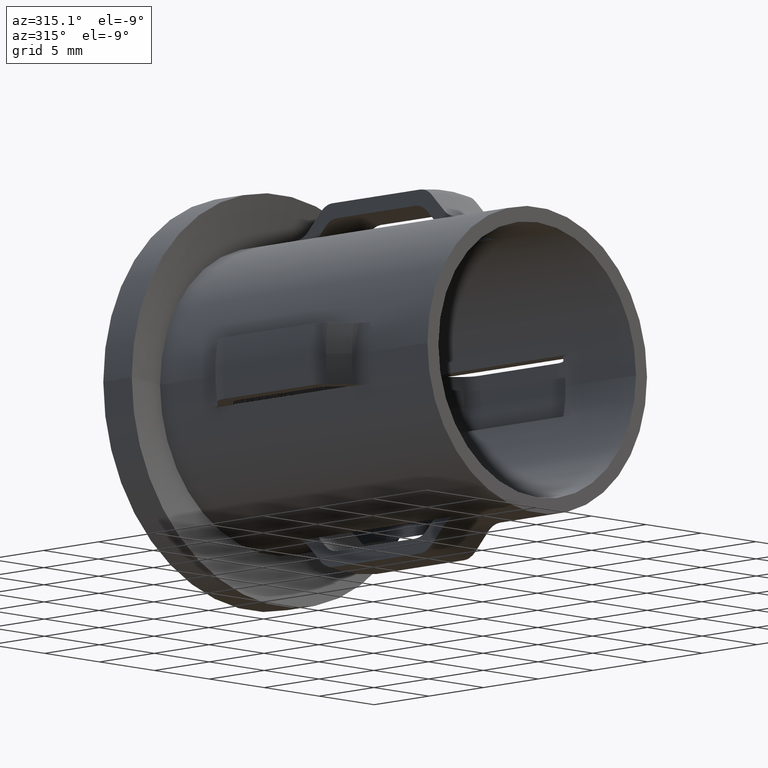
[diagram: clean part render]
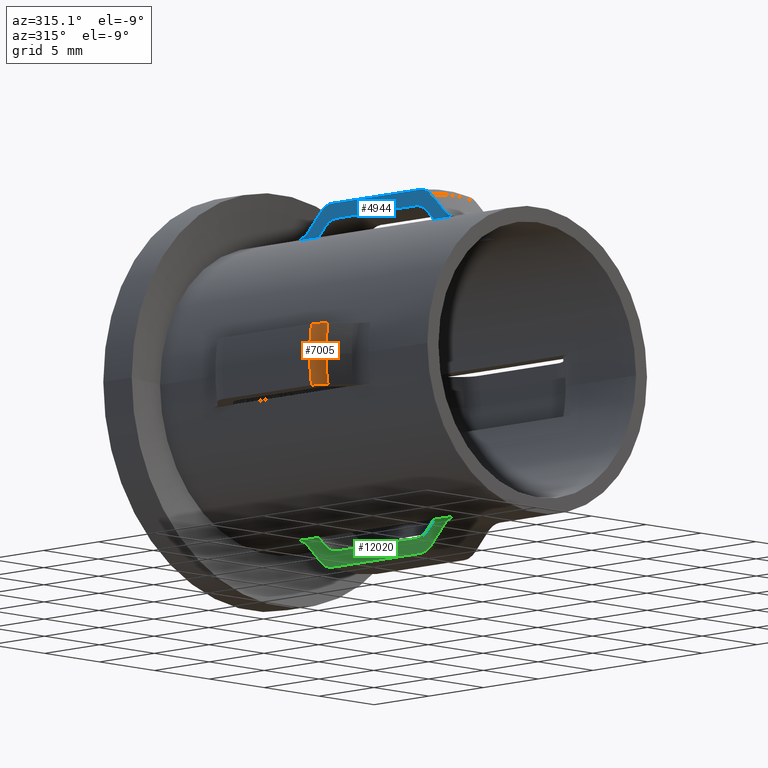
[diagram: same view with three faces highlighted in distinct colors, each labeled with its STEP entity id]
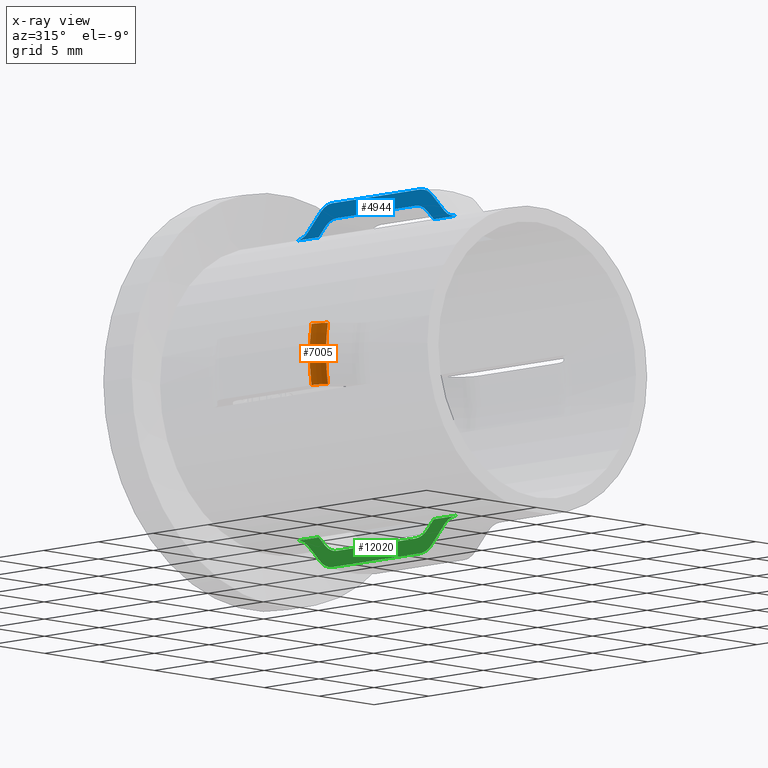
[diagram: x-ray of the same camera — body ghosted, the three highlighted faces saturated]
A machine part, auxiliary view with three faces highlighted in distinct colors.
The next image is the same camera in x-ray (body ghosted, the three faces saturated) — at least one of them is partly hidden behind the body in this view.
Their STEP definitions:

[orange] entity #7005 — the highlighted toroidal blend (fillet) surface has major radius 10.55 mm and minor (blend) radius 1.5 mm.
#279 = CARTESIAN_POINT ( 'NONE',  ( -4.878030729744130099E-14, 8.707359312880747382, 0.000000000000000000 ) ) ;
#543 = EDGE_CURVE ( 'NONE', #4709, #8369, #7577, .T. ) ;
#1385 = DIRECTION ( 'NONE',  ( 1.000000000000000000, -2.879209088758173453E-15, 0.000000000000000000 ) ) ;
#1486 = B_SPLINE_CURVE_WITH_KNOTS ( 'NONE', 3,
 ( #8958, #2266, #2214, #11278, #10096, #12397 ),
 .UNSPECIFIED., .F., .F.,
 ( 4, 2, 4 ),
 ( 0.009145713142651000147, 0.009732898678854330632, 0.01032008421505765938 ),
 .UNSPECIFIED. ) ;
#2214 = CARTESIAN_POINT ( 'NONE',  ( -11.69117218591207674, 7.952754516175357224, -2.000000000000002665 ) ) ;
#2266 = CARTESIAN_POINT ( 'NONE',  ( -11.57850266141621631, 7.785980699463697974, -2.000000000000002665 ) ) ;
#2334 = CARTESIAN_POINT ( 'NONE',  ( -5.186137894552718274E-14, 7.646699141100925523, 0.000000000000000000 ) ) ;
#2579 = CARTESIAN_POINT ( 'NONE',  ( -11.88286581595550118, 8.707359312880743829, -2.000000000000002665 ) ) ;
#2920 = CARTESIAN_POINT ( 'NONE',  ( -11.43710757248338084, 7.646699141100960162, -2.000000000000002665 ) ) ;
#3886 = ORIENTED_EDGE ( 'NONE', *, *, #543, .F. ) ;
#4268 = ORIENTED_EDGE ( 'NONE', *, *, #7823, .T. ) ;
#4709 = VERTEX_POINT ( 'NONE', #12557 ) ;
#4935 = VERTEX_POINT ( 'NONE', #9776 ) ;
#5096 = ORIENTED_EDGE ( 'NONE', *, *, #7272, .F. ) ;
#5576 = DIRECTION ( 'NONE',  ( -2.904862207577519418E-15, -1.000000000000000000, -0.000000000000000000 ) ) ;
#6229 = CARTESIAN_POINT ( 'NONE',  ( -11.88286581595550118, 8.707359312880743829, 1.999999999999997113 ) ) ;
#6424 = EDGE_CURVE ( 'NONE', #8369, #13253, #14372, .T. ) ;
#6440 = TOROIDAL_SURFACE ( 'NONE', #9800, 10.55000000000005045, 1.500000000000000444 ) ;
#7005 = ADVANCED_FACE ( 'NONE', ( #10823 ), #6440, .T. ) ;
#7192 = AXIS2_PLACEMENT_3D ( 'NONE', #2334, #5576, #11327 ) ;
#7195 = CARTESIAN_POINT ( 'NONE',  ( -11.43710757248337906, 7.646699141100959274, 1.999999999999997335 ) ) ;
#7272 = EDGE_CURVE ( 'NONE', #13253, #14277, #1486, .T. ) ;
#7301 = DIRECTION ( 'NONE',  ( -2.904862207577519418E-15, -1.000000000000000000, -0.000000000000000000 ) ) ;
#7577 = CIRCLE ( 'NONE', #7192, 11.61066017177987497 ) ;
#7765 = CARTESIAN_POINT ( 'NONE',  ( -11.61066017177992649, 7.646699141100960162, 0.000000000000000000 ) ) ;
#7823 = EDGE_CURVE ( 'NONE', #4709, #4935, #11464, .T. ) ;
#8127 = DIRECTION ( 'NONE',  ( -2.904862207577519418E-15, -1.000000000000000000, -0.000000000000000000 ) ) ;
#8275 = ORIENTED_EDGE ( 'NONE', *, *, #9358, .T. ) ;
#8369 = VERTEX_POINT ( 'NONE', #7765 ) ;
#8958 = CARTESIAN_POINT ( 'NONE',  ( -11.43710757248338084, 7.646699141100960162, -2.000000000000002665 ) ) ;
#9358 = EDGE_CURVE ( 'NONE', #4935, #14277, #11843, .T. ) ;
#9503 = CARTESIAN_POINT ( 'NONE',  ( -11.88286581595549762, 8.511172080406096185, 1.999999999999997335 ) ) ;
#9688 = EDGE_LOOP ( 'NONE', ( #3886, #4268, #8275, #5096, #11706 ) ) ;
#9776 = CARTESIAN_POINT ( 'NONE',  ( -11.88286581595550118, 8.707359312880743829, 1.999999999999997113 ) ) ;
#9800 = AXIS2_PLACEMENT_3D ( 'NONE', #14061, #7301, #10797 ) ;
#10096 = CARTESIAN_POINT ( 'NONE',  ( -11.88286581595549407, 8.511172080406097962, -2.000000000000002665 ) ) ;
#10797 = DIRECTION ( 'NONE',  ( 1.000000000000000000, -2.904862207577519418E-15, 0.000000000000000000 ) ) ;
#10823 = FACE_OUTER_BOUND ( 'NONE', #9688, .T. ) ;
#11200 = AXIS2_PLACEMENT_3D ( 'NONE', #11461, #12643, #12591 ) ;
#11278 = CARTESIAN_POINT ( 'NONE',  ( -11.84284611610619820, 8.313655355197303365, -2.000000000000002220 ) ) ;
#11327 = DIRECTION ( 'NONE',  ( 1.000000000000000000, -2.913452575570658399E-15, 0.000000000000000000 ) ) ;
#11461 = CARTESIAN_POINT ( 'NONE',  ( -5.186137894552718274E-14, 7.646699141100925523, 0.000000000000000000 ) ) ;
#11464 = B_SPLINE_CURVE_WITH_KNOTS ( 'NONE', 3,
 ( #7195, #14007, #11860, #11667, #9503, #6229 ),
 .UNSPECIFIED., .F., .F.,
 ( 4, 2, 4 ),
 ( 0.009145713142650991473, 0.009732898678854321958, 0.01032008421505765244 ),
 .UNSPECIFIED. ) ;
#11667 = CARTESIAN_POINT ( 'NONE',  ( -11.84284611610619820, 8.313655355197298036, 1.999999999999997113 ) ) ;
#11706 = ORIENTED_EDGE ( 'NONE', *, *, #6424, .F. ) ;
#11843 = CIRCLE ( 'NONE', #12249, 12.05000000000005222 ) ;
#11860 = CARTESIAN_POINT ( 'NONE',  ( -11.69117218591207852, 7.952754516175357224, 1.999999999999997113 ) ) ;
#12249 = AXIS2_PLACEMENT_3D ( 'NONE', #279, #8127, #1385 ) ;
#12397 = CARTESIAN_POINT ( 'NONE',  ( -11.88286581595550118, 8.707359312880743829, -2.000000000000002665 ) ) ;
#12557 = CARTESIAN_POINT ( 'NONE',  ( -11.43710757248337906, 7.646699141100959274, 1.999999999999997335 ) ) ;
#12591 = DIRECTION ( 'NONE',  ( 1.000000000000000000, -2.913452575570658399E-15, 0.000000000000000000 ) ) ;
#12643 = DIRECTION ( 'NONE',  ( -2.904862207577519418E-15, -1.000000000000000000, -0.000000000000000000 ) ) ;
#13253 = VERTEX_POINT ( 'NONE', #2920 ) ;
#14007 = CARTESIAN_POINT ( 'NONE',  ( -11.57850266141621276, 7.785980699463697086, 1.999999999999997780 ) ) ;
#14061 = CARTESIAN_POINT ( 'NONE',  ( -4.857225732735059864E-14, 8.707359312880743829, 0.000000000000000000 ) ) ;
#14277 = VERTEX_POINT ( 'NONE', #2579 ) ;
#14372 = CIRCLE ( 'NONE', #11200, 11.61066017177987497 ) ;

[blue] entity #4944 — the highlighted planar face has unit normal (-1, 0, 0).
#88 = CARTESIAN_POINT ( 'NONE',  ( -1.999999999999998668, 7.646699141100930852, 11.43710757248333643 ) ) ;
#155 = CARTESIAN_POINT ( 'NONE',  ( -1.999999999999999112, 7.450252531694248503, 9.797958971132805672 ) ) ;
#300 = VECTOR ( 'NONE', #14446, 1000.000000000000000 ) ;
#402 = CARTESIAN_POINT ( 'NONE',  ( -2.000000000000046629, 9.121572875253811219, 10.86749741200801012 ) ) ;
#480 = CARTESIAN_POINT ( 'NONE',  ( -1.999999999999999112, 7.681722625402113813, 10.03416476362941268 ) ) ;
#487 = CARTESIAN_POINT ( 'NONE',  ( -2.000000000000000444, 20.00000000000003553, 9.797958971132734618 ) ) ;
#749 = CARTESIAN_POINT ( 'NONE',  ( -1.999999999999998668, 17.44767780837118210, 10.32488065075585482 ) ) ;
#760 = CARTESIAN_POINT ( 'NONE',  ( -1.999999999999998668, 8.707359312880743829, 11.88286581595543367 ) ) ;
#807 = CARTESIAN_POINT ( 'NONE',  ( -1.999999999999999112, 6.475378797541287312, 10.24596584266537391 ) ) ;
#1046 = ORIENTED_EDGE ( 'NONE', *, *, #13488, .F. ) ;
#1298 = LINE ( 'NONE', #10266, #12376 ) ;
#1462 = CARTESIAN_POINT ( 'NONE',  ( -1.999999999999998668, 17.35380592228747076, 10.42046588598586432 ) ) ;
#1721 = CARTESIAN_POINT ( 'NONE',  ( -1.999999999999998668, 7.646699141100930852, 11.43710757248333643 ) ) ;
#1732 = B_SPLINE_CURVE_WITH_KNOTS ( 'NONE', 3,
 ( #14311, #11026, #9944, #12200 ),
 .UNSPECIFIED., .F., .F.,
 ( 4, 4 ),
 ( 0.002561914376716860169, 0.004232485004038142457 ),
 .UNSPECIFIED. ) ;
#1831 = LINE ( 'NONE', #12937, #5881 ) ;
#1838 = CARTESIAN_POINT ( 'NONE',  ( -1.999999999999999112, 5.810867761781932650, 9.838866221195807782 ) ) ;
#1907 = CARTESIAN_POINT ( 'NONE',  ( -1.999999999999998668, 17.74509094668708897, 10.02178115446111661 ) ) ;
#1916 = B_SPLINE_CURVE_WITH_KNOTS ( 'NONE', 3,
 ( #13506, #7877, #12245, #12396, #5686, #88 ),
 .UNSPECIFIED., .F., .F.,
 ( 4, 2, 4 ),
 ( 0.008616956759455233344, 0.009203699429973396379, 0.009790442100491557678 ),
 .UNSPECIFIED. ) ;
#1989 = CARTESIAN_POINT ( 'NONE',  ( -1.999999999999998224, 16.39160956397686419, 10.86749741200802433 ) ) ;
#2052 = CARTESIAN_POINT ( 'NONE',  ( -1.999999999999998668, 8.060912703474032881, 10.42046588598589807 ) ) ;
#2348 = B_SPLINE_CURVE_WITH_KNOTS ( 'NONE', 3,
 ( #2769, #10596, #7345, #12912, #8424, #5136 ),
 .UNSPECIFIED., .F., .F.,
 ( 4, 2, 4 ),
 ( 0.008609583659681745507, 0.009196613660134619894, 0.009783643660587496016 ),
 .UNSPECIFIED. ) ;
#2429 = ORIENTED_EDGE ( 'NONE', *, *, #10641, .T. ) ;
#2721 = CARTESIAN_POINT ( 'NONE',  ( -1.999999999999998668, 8.060912703474032881, 10.42046588598589807 ) ) ;
#2769 = CARTESIAN_POINT ( 'NONE',  ( -1.999999999999998224, 17.76801948466057723, 11.43710757248330090 ) ) ;
#3180 = CARTESIAN_POINT ( 'NONE',  ( -1.999999999999998668, 16.68184691326875324, 10.81878208188817503 ) ) ;
#3399 = CARTESIAN_POINT ( 'NONE',  ( -1.999999999999999112, 19.51651431633860767, 9.876154369981248848 ) ) ;
#3400 = DIRECTION ( 'NONE',  ( 2.194104812664985690E-16, 0.000000000000000000, 1.000000000000000000 ) ) ;
#3452 = B_SPLINE_CURVE_WITH_KNOTS ( 'NONE', 3,
 ( #3748, #6086, #10601, #12676, #7157, #11575, #11674, #12728, #13870, #402 ),
 .UNSPECIFIED., .F., .F.,
 ( 4, 2, 2, 2, 4 ),
 ( 1.798185820399988920E-05, 0.0003120552849485355175, 0.0006061287116930711696, 0.0009002021384376067675, 0.001194275565182142474 ),
 .UNSPECIFIED. ) ;
#3485 = AXIS2_PLACEMENT_3D ( 'NONE', #11354, #12432, #3400 ) ;
#3666 = VERTEX_POINT ( 'NONE', #9877 ) ;
#3729 = EDGE_LOOP ( 'NONE', ( #6669, #5381, #5461, #4224, #7075, #3901, #2429, #4426, #11279, #7903, #5459, #1046, #11605, #12096 ) ) ;
#3748 = CARTESIAN_POINT ( 'NONE',  ( -1.999999999999998668, 8.060912703474032881, 10.42046588598589807 ) ) ;
#3901 = ORIENTED_EDGE ( 'NONE', *, *, #7814, .F. ) ;
#4224 = ORIENTED_EDGE ( 'NONE', *, *, #10079, .F. ) ;
#4313 = CARTESIAN_POINT ( 'NONE',  ( -1.999999999999999112, 16.77740935275310363, 10.78924037778891254 ) ) ;
#4370 = CARTESIAN_POINT ( 'NONE',  ( -1.999999999999998224, 19.61016997431847031, 9.847185022925424747 ) ) ;
#4426 = ORIENTED_EDGE ( 'NONE', *, *, #14514, .F. ) ;
#4482 = CARTESIAN_POINT ( 'NONE',  ( -1.999999999999998224, 19.24281738224886240, 9.991970481237865798 ) ) ;
#4497 = EDGE_CURVE ( 'NONE', #12400, #11289, #1916, .T. ) ;
#4944 = ADVANCED_FACE ( 'NONE', ( #7861 ), #14576, .T. ) ;
#5077 = CARTESIAN_POINT ( 'NONE',  ( -1.999999999999999112, 7.464263633708469570, 9.812258992244883515 ) ) ;
#5136 = CARTESIAN_POINT ( 'NONE',  ( -1.999999999999998224, 16.70735931288071896, 11.88286581595543367 ) ) ;
#5231 = CARTESIAN_POINT ( 'NONE',  ( -1.999999999999999112, 6.081926190087650674, 9.954065724113831948 ) ) ;
#5260 = CARTESIAN_POINT ( 'NONE',  ( -1.999999999999998668, 17.54152635645387193, 10.22927248926908916 ) ) ;
#5279 = CARTESIAN_POINT ( 'NONE',  ( -1.999999999999999556, 5.610933610141445982, 9.797958971132791461 ) ) ;
#5319 = CARTESIAN_POINT ( 'NONE',  ( -1.999999999999998668, 17.85479767873468759, 9.909888828826286300 ) ) ;
#5348 = CARTESIAN_POINT ( 'NONE',  ( -1.999999999999998668, 17.04837425921796878, 10.67494698003793907 ) ) ;
#5353 = B_SPLINE_CURVE_WITH_KNOTS ( 'NONE', 3,
 ( #14229, #749, #5260, #8653, #1907, #5319, #7614 ),
 .UNSPECIFIED., .F., .F.,
 ( 4, 3, 4 ),
 ( 0.002337988813253541812, 0.002739904172749566859, 0.003210009343676388776 ),
 .UNSPECIFIED. ) ;
#5381 = ORIENTED_EDGE ( 'NONE', *, *, #9629, .F. ) ;
#5459 = ORIENTED_EDGE ( 'NONE', *, *, #10101, .F. ) ;
#5461 = ORIENTED_EDGE ( 'NONE', *, *, #14130, .F. ) ;
#5614 = VERTEX_POINT ( 'NONE', #155 ) ;
#5657 = B_SPLINE_CURVE_WITH_KNOTS ( 'NONE', 3,
 ( #8832, #1989, #10005, #3180, #4313, #5348, #6664, #14358 ),
 .UNSPECIFIED., .F., .F.,
 ( 4, 2, 2, 4 ),
 ( 0.008292909136274940335, 0.008586519548493766821, 0.008880129960712593307, 0.009467350785150248013 ),
 .UNSPECIFIED. ) ;
#5671 = CARTESIAN_POINT ( 'NONE',  ( -1.999999999999998668, 19.80220780296835414, 9.808040498164411147 ) ) ;
#5686 = CARTESIAN_POINT ( 'NONE',  ( -1.999999999999999112, 7.784102404787955010, 11.57659586452334288 ) ) ;
#5723 = B_SPLINE_CURVE_WITH_KNOTS ( 'NONE', 3,
 ( #14349, #9797, #9898, #6429 ),
 .UNSPECIFIED., .F., .F.,
 ( 4, 4 ),
 ( 0.004138614694279705436, 0.005809177398622624930 ),
 .UNSPECIFIED. ) ;
#5775 = EDGE_CURVE ( 'NONE', #11289, #3666, #1732, .T. ) ;
#5881 = VECTOR ( 'NONE', #13083, 1000.000000000000000 ) ;
#6078 = CARTESIAN_POINT ( 'NONE',  ( -1.999999999999999112, 7.492287707651494877, 9.840857202254531089 ) ) ;
#6086 = CARTESIAN_POINT ( 'NONE',  ( -1.999999999999998224, 8.130436353473736943, 10.49125848126139182 ) ) ;
#6422 = CARTESIAN_POINT ( 'NONE',  ( -1.999999999999999556, 6.406818607882923011, 10.17611170401984744 ) ) ;
#6429 = CARTESIAN_POINT ( 'NONE',  ( -1.999999999999998224, 17.76801948466057723, 11.43710757248330090 ) ) ;
#6443 = VERTEX_POINT ( 'NONE', #11652 ) ;
#6592 = CARTESIAN_POINT ( 'NONE',  ( -2.000000000000000444, 20.00000000000003553, 9.797958971132734618 ) ) ;
#6664 = CARTESIAN_POINT ( 'NONE',  ( -1.999999999999999112, 17.21478181867978208, 10.56202745676470656 ) ) ;
#6669 = ORIENTED_EDGE ( 'NONE', *, *, #7096, .T. ) ;
#6784 = CARTESIAN_POINT ( 'NONE',  ( -1.999999999999999112, 19.07642347337002064, 10.10629499283184174 ) ) ;
#6969 = EDGE_CURVE ( 'NONE', #8068, #7601, #3452, .T. ) ;
#6974 = VERTEX_POINT ( 'NONE', #487 ) ;
#7075 = ORIENTED_EDGE ( 'NONE', *, *, #6969, .F. ) ;
#7077 = VERTEX_POINT ( 'NONE', #13065 ) ;
#7096 = EDGE_CURVE ( 'NONE', #6974, #6443, #12401, .T. ) ;
#7154 = EDGE_CURVE ( 'NONE', #7866, #7077, #5723, .T. ) ;
#7157 = CARTESIAN_POINT ( 'NONE',  ( -1.999999999999999112, 8.455790071252783591, 10.71263851394380850 ) ) ;
#7345 = CARTESIAN_POINT ( 'NONE',  ( -1.999999999999998224, 17.46523258207299278, 11.68959653606007087 ) ) ;
#7347 = CARTESIAN_POINT ( 'NONE',  ( -1.999999999999998668, 20.00000000000000000, 9.797958971132805672 ) ) ;
#7426 = CARTESIAN_POINT ( 'NONE',  ( -1.999999999999998668, 25.50000000000000000, 10.86749741200801012 ) ) ;
#7601 = VERTEX_POINT ( 'NONE', #13087 ) ;
#7614 = CARTESIAN_POINT ( 'NONE',  ( -1.999999999999998668, 17.96446609406721251, 9.797958971132805672 ) ) ;
#7814 = EDGE_CURVE ( 'NONE', #5614, #8068, #9206, .T. ) ;
#7861 = FACE_OUTER_BOUND ( 'NONE', #3729, .T. ) ;
#7866 = VERTEX_POINT ( 'NONE', #12905 ) ;
#7877 = CARTESIAN_POINT ( 'NONE',  ( -1.999999999999998224, 8.510025997912126883, 11.88286581595540348 ) ) ;
#7903 = ORIENTED_EDGE ( 'NONE', *, *, #4497, .F. ) ;
#8068 = VERTEX_POINT ( 'NONE', #2052 ) ;
#8321 = CARTESIAN_POINT ( 'NONE',  ( -1.999999999999998668, 16.29314575050765157, 10.86749741200805452 ) ) ;
#8395 = EDGE_CURVE ( 'NONE', #6974, #7866, #11261, .T. ) ;
#8424 = CARTESIAN_POINT ( 'NONE',  ( -1.999999999999998224, 16.90323624798877944, 11.88286581595538038 ) ) ;
#8458 = DIRECTION ( 'NONE',  ( 2.904862207577519418E-15, 1.000000000000000000, 0.000000000000000000 ) ) ;
#8564 = CARTESIAN_POINT ( 'NONE',  ( -1.999999999999999112, 6.167751309589736941, 10.00101974118117454 ) ) ;
#8652 = CARTESIAN_POINT ( 'NONE',  ( -1.999999999999999112, 5.414718625761427262, 9.797958971132805672 ) ) ;
#8653 = CARTESIAN_POINT ( 'NONE',  ( -1.999999999999998668, 17.63534954760340057, 10.13363945630762863 ) ) ;
#8832 = CARTESIAN_POINT ( 'NONE',  ( -1.999999999999998668, 16.29314575050765157, 10.86749741200805452 ) ) ;
#9206 = B_SPLINE_CURVE_WITH_KNOTS ( 'NONE', 3,
 ( #13913, #5077, #9454, #6078, #480, #13968, #2721 ),
 .UNSPECIFIED., .F., .F.,
 ( 4, 3, 4 ),
 ( 0.002679849303129585875, 0.002739909218080226194, 0.003551868367306830910 ),
 .UNSPECIFIED. ) ;
#9454 = CARTESIAN_POINT ( 'NONE',  ( -1.999999999999999112, 7.478275361716024250, 9.826558400037438190 ) ) ;
#9629 = EDGE_CURVE ( 'NONE', #14307, #6443, #5353, .T. ) ;
#9797 = CARTESIAN_POINT ( 'NONE',  ( -1.999999999999998668, 18.54927984631041582, 10.64338749788789329 ) ) ;
#9838 = CARTESIAN_POINT ( 'NONE',  ( -1.999999999999999112, 5.414718625761427262, 9.797958971132805672 ) ) ;
#9877 = CARTESIAN_POINT ( 'NONE',  ( -1.999999999999999112, 6.475378797541287312, 10.24596584266537391 ) ) ;
#9898 = CARTESIAN_POINT ( 'NONE',  ( -1.999999999999998224, 18.15880065461130854, 11.04039648647894545 ) ) ;
#9944 = CARTESIAN_POINT ( 'NONE',  ( -1.999999999999999112, 6.865438779451093154, 10.64338749788793947 ) ) ;
#10005 = CARTESIAN_POINT ( 'NONE',  ( -1.999999999999999112, 16.48904045060761092, 10.85773441581810417 ) ) ;
#10079 = EDGE_CURVE ( 'NONE', #7601, #11137, #13457, .T. ) ;
#10101 = EDGE_CURVE ( 'NONE', #13226, #12400, #1831, .T. ) ;
#10266 = CARTESIAN_POINT ( 'NONE',  ( -1.999999999999998668, 20.00000000000000000, 9.797958971132805672 ) ) ;
#10596 = CARTESIAN_POINT ( 'NONE',  ( -1.999999999999997780, 17.62924608409567639, 11.57798679256845276 ) ) ;
#10601 = CARTESIAN_POINT ( 'NONE',  ( -1.999999999999999112, 8.205802052683681680, 10.55418621259253698 ) ) ;
#10641 = EDGE_CURVE ( 'NONE', #5614, #11462, #1298, .T. ) ;
#10831 = CARTESIAN_POINT ( 'NONE',  ( -1.999999999999999112, 6.330368194126933190, 10.11199452816322975 ) ) ;
#11026 = CARTESIAN_POINT ( 'NONE',  ( -1.999999999999998668, 7.255917971150203094, 11.04039648647898453 ) ) ;
#11137 = VERTEX_POINT ( 'NONE', #8321 ) ;
#11196 = CARTESIAN_POINT ( 'NONE',  ( -1.999999999999998668, 19.90172383299797687, 9.797958971132723960 ) ) ;
#11261 = B_SPLINE_CURVE_WITH_KNOTS ( 'NONE', 3,
 ( #6592, #11196, #5671, #4370, #3399, #4482, #6784, #12380 ),
 .UNSPECIFIED., .F., .F.,
 ( 4, 2, 2, 4 ),
 ( 0.008551085924792121290, 0.008844617867056031937, 0.009138149809319940850, 0.009725213693847758675 ),
 .UNSPECIFIED. ) ;
#11279 = ORIENTED_EDGE ( 'NONE', *, *, #5775, .F. ) ;
#11289 = VERTEX_POINT ( 'NONE', #1721 ) ;
#11337 = DIRECTION ( 'NONE',  ( -2.449293598294745364E-17, -1.000000000000000000, -0.000000000000000000 ) ) ;
#11354 = CARTESIAN_POINT ( 'NONE',  ( -2.000000000000000888, 20.00000000000000000, 4.388209625329974832E-16 ) ) ;
#11462 = VERTEX_POINT ( 'NONE', #8652 ) ;
#11575 = CARTESIAN_POINT ( 'NONE',  ( -1.999999999999998668, 8.637245625406626104, 10.78925013755781848 ) ) ;
#11577 = B_SPLINE_CURVE_WITH_KNOTS ( 'NONE', 3,
 ( #807, #6422, #10831, #8564, #5231, #1838, #5279, #9838 ),
 .UNSPECIFIED., .F., .F.,
 ( 4, 2, 2, 4 ),
 ( 0.008426157723448629219, 0.008719793217878479136, 0.009013428712308329052, 0.009600699701168027150 ),
 .UNSPECIFIED. ) ;
#11605 = ORIENTED_EDGE ( 'NONE', *, *, #7154, .F. ) ;
#11652 = CARTESIAN_POINT ( 'NONE',  ( -1.999999999999998668, 17.96446609406721251, 9.797958971132805672 ) ) ;
#11674 = CARTESIAN_POINT ( 'NONE',  ( -1.999999999999999112, 8.730858571489134690, 10.81824200377736567 ) ) ;
#12096 = ORIENTED_EDGE ( 'NONE', *, *, #8395, .F. ) ;
#12200 = CARTESIAN_POINT ( 'NONE',  ( -1.999999999999999112, 6.475378797541287312, 10.24596584266537391 ) ) ;
#12245 = CARTESIAN_POINT ( 'NONE',  ( -1.999999999999999112, 8.315006248407303957, 11.84352778200039324 ) ) ;
#12376 = VECTOR ( 'NONE', #11337, 1000.000000000000000 ) ;
#12380 = CARTESIAN_POINT ( 'NONE',  ( -1.999999999999998668, 18.93933982822021989, 10.24596584266532417 ) ) ;
#12396 = CARTESIAN_POINT ( 'NONE',  ( -1.999999999999998668, 7.949946286326758482, 11.68987759699579243 ) ) ;
#12400 = VERTEX_POINT ( 'NONE', #760 ) ;
#12401 = LINE ( 'NONE', #7347, #300 ) ;
#12432 = DIRECTION ( 'NONE',  ( -1.000000000000000000, 2.449293598294745364E-17, 2.194104812664985690E-16 ) ) ;
#12676 = CARTESIAN_POINT ( 'NONE',  ( -1.999999999999998668, 8.367938021064258436, 10.66468826280368631 ) ) ;
#12728 = CARTESIAN_POINT ( 'NONE',  ( -1.999999999999998668, 8.923884257141329712, 10.85750275643490070 ) ) ;
#12905 = CARTESIAN_POINT ( 'NONE',  ( -1.999999999999998668, 18.93933982822021989, 10.24596584266532417 ) ) ;
#12912 = CARTESIAN_POINT ( 'NONE',  ( -1.999999999999998224, 17.10036544985328888, 11.84333999333066245 ) ) ;
#12937 = CARTESIAN_POINT ( 'NONE',  ( -1.999999999999998224, 20.00000000000000000, 11.88286581595543367 ) ) ;
#12964 = CARTESIAN_POINT ( 'NONE',  ( -1.999999999999998224, 16.70735931288071896, 11.88286581595543367 ) ) ;
#13065 = CARTESIAN_POINT ( 'NONE',  ( -1.999999999999998224, 17.76801948466057723, 11.43710757248330090 ) ) ;
#13083 = DIRECTION ( 'NONE',  ( -2.449293598294745364E-17, -1.000000000000000000, -0.000000000000000000 ) ) ;
#13087 = CARTESIAN_POINT ( 'NONE',  ( -2.000000000000046629, 9.121572875253811219, 10.86749741200801012 ) ) ;
#13226 = VERTEX_POINT ( 'NONE', #12964 ) ;
#13457 = LINE ( 'NONE', #7426, #14163 ) ;
#13488 = EDGE_CURVE ( 'NONE', #7077, #13226, #2348, .T. ) ;
#13506 = CARTESIAN_POINT ( 'NONE',  ( -1.999999999999998668, 8.707359312880743829, 11.88286581595543367 ) ) ;
#13870 = CARTESIAN_POINT ( 'NONE',  ( -1.999999999999999112, 9.023478673585810128, 10.86749741200802966 ) ) ;
#13913 = CARTESIAN_POINT ( 'NONE',  ( -1.999999999999999112, 7.450252531694248503, 9.797958971132805672 ) ) ;
#13968 = CARTESIAN_POINT ( 'NONE',  ( -1.999999999999998668, 7.871270170899635765, 10.22736199895444464 ) ) ;
#14130 = EDGE_CURVE ( 'NONE', #11137, #14307, #5657, .T. ) ;
#14163 = VECTOR ( 'NONE', #8458, 1000.000000000000000 ) ;
#14229 = CARTESIAN_POINT ( 'NONE',  ( -1.999999999999998668, 17.35380592228747076, 10.42046588598586432 ) ) ;
#14307 = VERTEX_POINT ( 'NONE', #1462 ) ;
#14311 = CARTESIAN_POINT ( 'NONE',  ( -1.999999999999998668, 7.646699141100930852, 11.43710757248333643 ) ) ;
#14349 = CARTESIAN_POINT ( 'NONE',  ( -1.999999999999998668, 18.93933982822021989, 10.24596584266532417 ) ) ;
#14358 = CARTESIAN_POINT ( 'NONE',  ( -1.999999999999998668, 17.35380592228747076, 10.42046588598586432 ) ) ;
#14446 = DIRECTION ( 'NONE',  ( -2.449293598294745364E-17, -1.000000000000000000, -0.000000000000000000 ) ) ;
#14514 = EDGE_CURVE ( 'NONE', #3666, #11462, #11577, .T. ) ;
#14576 = PLANE ( 'NONE',  #3485 ) ;

[green] entity #12020 — the highlighted planar face has unit normal (-1, 0, -0).
#204 = LINE ( 'NONE', #460, #3540 ) ;
#206 = VERTEX_POINT ( 'NONE', #3848 ) ;
#360 = CARTESIAN_POINT ( 'NONE',  ( -1.999999999999998668, 7.450252531694229852, -9.797958971132805672 ) ) ;
#460 = CARTESIAN_POINT ( 'NONE',  ( -1.999999999999998224, 20.00000000000000000, -11.88286581595543367 ) ) ;
#761 = CARTESIAN_POINT ( 'NONE',  ( -1.999999999999998668, 6.171971125716984474, -9.992096499387965736 ) ) ;
#792 = CARTESIAN_POINT ( 'NONE',  ( -1.999999999999998224, 20.00000000000000000, -9.797958971132805672 ) ) ;
#796 = CARTESIAN_POINT ( 'NONE',  ( -1.999999999999998668, 8.707359312880743829, -11.88286581595543367 ) ) ;
#987 = CARTESIAN_POINT ( 'NONE',  ( -1.999999999999998224, 18.93933982822021633, -10.24596584266532595 ) ) ;
#1038 = CARTESIAN_POINT ( 'NONE',  ( -1.999999999999999112, 8.728487956005229975, -10.82787953940949777 ) ) ;
#1118 = CARTESIAN_POINT ( 'NONE',  ( -1.999999999999998668, 7.450252531694229852, -9.797958971132805672 ) ) ;
#1170 = EDGE_CURVE ( 'NONE', #13947, #13027, #2475, .T. ) ;
#1236 = EDGE_CURVE ( 'NONE', #8480, #8352, #204, .T. ) ;
#1336 = CARTESIAN_POINT ( 'NONE',  ( -1.999999999999998224, 19.51614987797371725, -9.876267447560300283 ) ) ;
#1451 = ORIENTED_EDGE ( 'NONE', *, *, #3643, .F. ) ;
#1585 = DIRECTION ( 'NONE',  ( -2.449293598294745364E-17, -1.000000000000000000, -0.000000000000000000 ) ) ;
#2037 = B_SPLINE_CURVE_WITH_KNOTS ( 'NONE', 3,
 ( #4495, #9939, #3215, #987 ),
 .UNSPECIFIED., .F., .F.,
 ( 4, 4 ),
 ( 0.003942268534101852663, 0.005612840802721034625 ),
 .UNSPECIFIED. ) ;
#2086 = CARTESIAN_POINT ( 'NONE',  ( -1.999999999999998668, 7.646699141100930852, -11.43710757248333465 ) ) ;
#2454 = VERTEX_POINT ( 'NONE', #13642 ) ;
#2475 = B_SPLINE_CURVE_WITH_KNOTS ( 'NONE', 3,
 ( #9244, #7086, #9330, #3698, #4824, #10563, #360 ),
 .UNSPECIFIED., .F., .F.,
 ( 4, 3, 4 ),
 ( 0.001927944256414137114, 0.002739904734369425117, 0.002799964747604988605 ),
 .UNSPECIFIED. ) ;
#2521 = CARTESIAN_POINT ( 'NONE',  ( -1.999999999999997780, 19.90151168120874203, -9.797958971132723960 ) ) ;
#2677 = CARTESIAN_POINT ( 'NONE',  ( -1.999999999999998224, 17.60969348633849663, -10.15984717538005278 ) ) ;
#2682 = CARTESIAN_POINT ( 'NONE',  ( -1.999999999999998668, 5.414718625761427262, -9.797958971132805672 ) ) ;
#2965 = VERTEX_POINT ( 'NONE', #11814 ) ;
#3087 = VERTEX_POINT ( 'NONE', #13806 ) ;
#3102 = CARTESIAN_POINT ( 'NONE',  ( -1.999999999999998224, 20.00000000000000000, -9.797958971132805672 ) ) ;
#3177 = CARTESIAN_POINT ( 'NONE',  ( -1.999999999999998224, 17.76801948466316361, -11.43710757248518384 ) ) ;
#3215 = CARTESIAN_POINT ( 'NONE',  ( -1.999999999999998224, 18.54928090708644817, -10.64338641709163369 ) ) ;
#3251 = B_SPLINE_CURVE_WITH_KNOTS ( 'NONE', 3,
 ( #14518, #7760, #14420, #2086 ),
 .UNSPECIFIED., .F., .F.,
 ( 4, 4 ),
 ( 0.003491914475831821903, 0.005162479453752762994 ),
 .UNSPECIFIED. ) ;
#3272 = DIRECTION ( 'NONE',  ( -1.000000000000000000, 2.449293598294745364E-17, -4.388209625329971504E-17 ) ) ;
#3293 = ORIENTED_EDGE ( 'NONE', *, *, #4544, .F. ) ;
#3304 = EDGE_CURVE ( 'NONE', #11624, #4904, #5023, .T. ) ;
#3540 = VECTOR ( 'NONE', #3847, 1000.000000000000000 ) ;
#3558 = CARTESIAN_POINT ( 'NONE',  ( -1.999999999999998224, 16.70735931288071896, -11.88286581595543367 ) ) ;
#3568 = EDGE_CURVE ( 'NONE', #4904, #206, #6139, .T. ) ;
#3613 = CARTESIAN_POINT ( 'NONE',  ( -1.999999999999997780, 19.60990471274842051, -9.847255399679983867 ) ) ;
#3643 = EDGE_CURVE ( 'NONE', #5106, #2965, #3251, .T. ) ;
#3698 = CARTESIAN_POINT ( 'NONE',  ( -1.999999999999998668, 7.492287707651493989, -9.840857202254532865 ) ) ;
#3743 = AXIS2_PLACEMENT_3D ( 'NONE', #9999, #3272, #9950 ) ;
#3847 = DIRECTION ( 'NONE',  ( -2.449293598294745364E-17, -1.000000000000000000, -0.000000000000000000 ) ) ;
#3848 = CARTESIAN_POINT ( 'NONE',  ( -1.999999999999998224, 17.96446609406723027, -9.797958971132805672 ) ) ;
#3867 = CARTESIAN_POINT ( 'NONE',  ( -1.999999999999998224, 17.43217195578515444, -10.34065857744529104 ) ) ;
#3928 = CARTESIAN_POINT ( 'NONE',  ( -1.999999999999999112, 5.899089837474170039, -9.876481105209444777 ) ) ;
#4154 = CARTESIAN_POINT ( 'NONE',  ( -1.999999999999998224, 8.925644425320507835, -10.86749741200802433 ) ) ;
#4206 = VECTOR ( 'NONE', #7702, 1000.000000000000000 ) ;
#4359 = EDGE_CURVE ( 'NONE', #8912, #5106, #6364, .T. ) ;
#4403 = CARTESIAN_POINT ( 'NONE',  ( -1.999999999999998224, 17.10313140693615352, -11.84227304728662666 ) ) ;
#4435 = VERTEX_POINT ( 'NONE', #9647 ) ;
#4495 = CARTESIAN_POINT ( 'NONE',  ( -1.999999999999998224, 17.76801948466316361, -11.43710757248518384 ) ) ;
#4530 = CARTESIAN_POINT ( 'NONE',  ( -1.999999999999998224, 17.05046993601217764, -10.67372107111294355 ) ) ;
#4544 = EDGE_CURVE ( 'NONE', #2454, #13947, #8896, .T. ) ;
#4668 = CARTESIAN_POINT ( 'NONE',  ( -1.999999999999998224, 7.952754516175332355, -11.69117218591204477 ) ) ;
#4736 = CARTESIAN_POINT ( 'NONE',  ( -1.999999999999998224, 19.07795624555880920, -10.10473329235344941 ) ) ;
#4824 = CARTESIAN_POINT ( 'NONE',  ( -1.999999999999998668, 7.478275361716019809, -9.826558400037436414 ) ) ;
#4881 = CARTESIAN_POINT ( 'NONE',  ( -1.999999999999998224, 19.80200291086221398, -9.808065996253899854 ) ) ;
#4889 = EDGE_LOOP ( 'NONE', ( #6274, #14475, #11768, #10830, #1451, #11067, #8050, #6011, #3293, #11697, #8786, #6400, #5314, #12364 ) ) ;
#4904 = VERTEX_POINT ( 'NONE', #3102 ) ;
#4985 = VERTEX_POINT ( 'NONE', #11308 ) ;
#5023 = B_SPLINE_CURVE_WITH_KNOTS ( 'NONE', 3,
 ( #9254, #4736, #12704, #1336, #3613, #4881, #2521, #5835 ),
 .UNSPECIFIED., .F., .F.,
 ( 4, 2, 2, 4 ),
 ( 0.009379177387257405657, 0.009967112098151868771, 0.01026107945359910380, 0.01055504680904633882 ),
 .UNSPECIFIED. ) ;
#5106 = VERTEX_POINT ( 'NONE', #10371 ) ;
#5228 = CARTESIAN_POINT ( 'NONE',  ( -1.999999999999998668, 6.475378797541287312, -10.24596584266537391 ) ) ;
#5314 = ORIENTED_EDGE ( 'NONE', *, *, #3568, .F. ) ;
#5342 = FACE_OUTER_BOUND ( 'NONE', #4889, .T. ) ;
#5573 = CARTESIAN_POINT ( 'NONE',  ( -1.999999999999999112, 8.199179978959543647, -10.56125681501986513 ) ) ;
#5585 = CARTESIAN_POINT ( 'NONE',  ( -1.999999999999998224, 16.70735931288071896, -11.88286581595543367 ) ) ;
#5835 = CARTESIAN_POINT ( 'NONE',  ( -1.999999999999998224, 20.00000000000000000, -9.797958971132805672 ) ) ;
#5975 = EDGE_CURVE ( 'NONE', #206, #4985, #11551, .T. ) ;
#5997 = CARTESIAN_POINT ( 'NONE',  ( -1.999999999999998224, 18.93933982822021633, -10.24596584266532595 ) ) ;
#6011 = ORIENTED_EDGE ( 'NONE', *, *, #1170, .F. ) ;
#6080 = CARTESIAN_POINT ( 'NONE',  ( -1.999999999999998224, 5.513568839548647738, -9.797958971132786132 ) ) ;
#6118 = CARTESIAN_POINT ( 'NONE',  ( -1.999999999999998224, 17.35380592228747076, -10.42046588598586432 ) ) ;
#6139 = LINE ( 'NONE', #792, #4206 ) ;
#6226 = VECTOR ( 'NONE', #11365, 1000.000000000000000 ) ;
#6274 = ORIENTED_EDGE ( 'NONE', *, *, #9822, .F. ) ;
#6364 = B_SPLINE_CURVE_WITH_KNOTS ( 'NONE', 3,
 ( #2682, #6080, #9746, #14250, #3928, #761, #12950, #5228 ),
 .UNSPECIFIED., .F., .F.,
 ( 4, 2, 2, 4 ),
 ( 0.009306239216002357498, 0.009600094048116868117, 0.009893948880231380472, 0.01048165854446040171 ),
 .UNSPECIFIED. ) ;
#6400 = ORIENTED_EDGE ( 'NONE', *, *, #5975, .F. ) ;
#6616 = CARTESIAN_POINT ( 'NONE',  ( -1.999999999999998224, 17.63030487728886442, -11.57691193269863206 ) ) ;
#6887 = CARTESIAN_POINT ( 'NONE',  ( -1.999999999999998668, 7.785980699463673105, -11.57850266141617368 ) ) ;
#6995 = CARTESIAN_POINT ( 'NONE',  ( -1.999999999999998224, 25.50000000000000000, -10.86749741200801012 ) ) ;
#7086 = CARTESIAN_POINT ( 'NONE',  ( -1.999999999999998668, 7.871270170899637542, -10.22736199895444287 ) ) ;
#7191 = CARTESIAN_POINT ( 'NONE',  ( -1.999999999999998224, 17.96446609406723027, -9.797958971132805672 ) ) ;
#7702 = DIRECTION ( 'NONE',  ( -2.449293598294745364E-17, -1.000000000000000000, -0.000000000000000000 ) ) ;
#7747 = CARTESIAN_POINT ( 'NONE',  ( -1.999999999999998668, 5.414718625761427262, -9.797958971132805672 ) ) ;
#7760 = CARTESIAN_POINT ( 'NONE',  ( -1.999999999999998668, 6.865437817574298940, -10.64338651785746492 ) ) ;
#8050 = ORIENTED_EDGE ( 'NONE', *, *, #9430, .F. ) ;
#8132 = CARTESIAN_POINT ( 'NONE',  ( -1.999999999999998668, 8.060912703474031105, -10.42046588598589985 ) ) ;
#8352 = VERTEX_POINT ( 'NONE', #796 ) ;
#8412 = CARTESIAN_POINT ( 'NONE',  ( -1.999999999999998224, 17.40605178142309484, -10.36726281713312758 ) ) ;
#8480 = VERTEX_POINT ( 'NONE', #3558 ) ;
#8786 = ORIENTED_EDGE ( 'NONE', *, *, #12578, .F. ) ;
#8896 = B_SPLINE_CURVE_WITH_KNOTS ( 'NONE', 3,
 ( #14599, #4154, #1038, #12296, #5573, #8132 ),
 .UNSPECIFIED., .F., .F.,
 ( 4, 2, 4 ),
 ( 0.008878263876236009919, 0.009465343677115871379, 0.01005242347799573457 ),
 .UNSPECIFIED. ) ;
#8912 = VERTEX_POINT ( 'NONE', #7747 ) ;
#8972 = CARTESIAN_POINT ( 'NONE',  ( -1.999999999999997780, 16.90563763891730531, -11.88286581595537150 ) ) ;
#9195 = CARTESIAN_POINT ( 'NONE',  ( -1.999999999999998668, 8.707359312880743829, -11.88286581595543367 ) ) ;
#9244 = CARTESIAN_POINT ( 'NONE',  ( -1.999999999999998668, 8.060912703474031105, -10.42046588598589985 ) ) ;
#9254 = CARTESIAN_POINT ( 'NONE',  ( -1.999999999999998224, 18.93933982822021633, -10.24596584266532595 ) ) ;
#9330 = CARTESIAN_POINT ( 'NONE',  ( -1.999999999999998668, 7.681722625402112925, -10.03416476362941445 ) ) ;
#9430 = EDGE_CURVE ( 'NONE', #13027, #8912, #10276, .T. ) ;
#9495 = CARTESIAN_POINT ( 'NONE',  ( -1.999999999999998224, 17.37992975632191417, -10.39386523987692001 ) ) ;
#9647 = CARTESIAN_POINT ( 'NONE',  ( -1.999999999999998224, 17.76801948466316361, -11.43710757248518384 ) ) ;
#9746 = CARTESIAN_POINT ( 'NONE',  ( -1.999999999999998668, 5.613105362145018873, -9.808108353993148398 ) ) ;
#9822 = EDGE_CURVE ( 'NONE', #4435, #11624, #2037, .T. ) ;
#9905 = PLANE ( 'NONE',  #3743 ) ;
#9939 = CARTESIAN_POINT ( 'NONE',  ( -1.999999999999998224, 18.15880138990121395, -11.04039574003136792 ) ) ;
#9950 = DIRECTION ( 'NONE',  ( -4.388209625329971504E-17, 0.000000000000000000, 1.000000000000000000 ) ) ;
#9999 = CARTESIAN_POINT ( 'NONE',  ( -1.999999999999998668, 20.00000000000000000, -8.776419250659939310E-17 ) ) ;
#10036 = CARTESIAN_POINT ( 'NONE',  ( -1.999999999999998224, 17.35380592228747076, -10.42046588598586432 ) ) ;
#10276 = LINE ( 'NONE', #11740, #14336 ) ;
#10371 = CARTESIAN_POINT ( 'NONE',  ( -1.999999999999998668, 6.475378797541287312, -10.24596584266537391 ) ) ;
#10563 = CARTESIAN_POINT ( 'NONE',  ( -1.999999999999998668, 7.464263633708464241, -9.812258992244878186 ) ) ;
#10588 = CARTESIAN_POINT ( 'NONE',  ( -1.999999999999998224, 17.78712980760910511, -9.978952060592153117 ) ) ;
#10830 = ORIENTED_EDGE ( 'NONE', *, *, #11508, .F. ) ;
#10910 = B_SPLINE_CURVE_WITH_KNOTS ( 'NONE', 3,
 ( #11100, #6887, #4668, #11447, #12473, #9195 ),
 .UNSPECIFIED., .F., .F.,
 ( 4, 2, 4 ),
 ( 0.009145713142650975860, 0.009732898678854320224, 0.01032008421505766285 ),
 .UNSPECIFIED. ) ;
#11067 = ORIENTED_EDGE ( 'NONE', *, *, #4359, .F. ) ;
#11100 = CARTESIAN_POINT ( 'NONE',  ( -1.999999999999998668, 7.646699141100930852, -11.43710757248333465 ) ) ;
#11206 = CARTESIAN_POINT ( 'NONE',  ( -1.999999999999997780, 17.21675614910725471, -10.56001709086917906 ) ) ;
#11297 = B_SPLINE_CURVE_WITH_KNOTS ( 'NONE', 3,
 ( #10036, #11206, #4530, #14533, #12341, #12283 ),
 .UNSPECIFIED., .F., .F.,
 ( 4, 2, 4 ),
 ( 0.008443631396323212149, 0.009030682281471653222, 0.009617733166620094296 ),
 .UNSPECIFIED. ) ;
#11308 = CARTESIAN_POINT ( 'NONE',  ( -1.999999999999998224, 17.35380592228747076, -10.42046588598586432 ) ) ;
#11365 = DIRECTION ( 'NONE',  ( -2.904862207577519418E-15, -1.000000000000000000, -0.000000000000000000 ) ) ;
#11447 = CARTESIAN_POINT ( 'NONE',  ( -1.999999999999998224, 8.313655355197289154, -11.84284611610616444 ) ) ;
#11508 = EDGE_CURVE ( 'NONE', #2965, #8352, #10910, .T. ) ;
#11551 = B_SPLINE_CURVE_WITH_KNOTS ( 'NONE', 3,
 ( #7191, #10588, #2677, #3867, #8412, #9495, #6118 ),
 .UNSPECIFIED., .F., .F.,
 ( 4, 3, 4 ),
 ( 0.001979736992811669417, 0.002739907002789168829, 0.002851756854596561915 ),
 .UNSPECIFIED. ) ;
#11624 = VERTEX_POINT ( 'NONE', #5997 ) ;
#11697 = ORIENTED_EDGE ( 'NONE', *, *, #12661, .F. ) ;
#11740 = CARTESIAN_POINT ( 'NONE',  ( -1.999999999999998224, 20.00000000000000000, -9.797958971132805672 ) ) ;
#11768 = ORIENTED_EDGE ( 'NONE', *, *, #1236, .T. ) ;
#11814 = CARTESIAN_POINT ( 'NONE',  ( -1.999999999999998668, 7.646699141100930852, -11.43710757248333465 ) ) ;
#11972 = EDGE_CURVE ( 'NONE', #8480, #4435, #13474, .T. ) ;
#12020 = ADVANCED_FACE ( 'NONE', ( #5342 ), #9905, .T. ) ;
#12283 = CARTESIAN_POINT ( 'NONE',  ( -1.999999999999998224, 16.29314575050783276, -10.86749741200926245 ) ) ;
#12296 = CARTESIAN_POINT ( 'NONE',  ( -1.999999999999998668, 8.363193596606498303, -10.67343698944832120 ) ) ;
#12341 = CARTESIAN_POINT ( 'NONE',  ( -1.999999999999998224, 16.48947215423919843, -10.86749741200801189 ) ) ;
#12364 = ORIENTED_EDGE ( 'NONE', *, *, #3304, .F. ) ;
#12473 = CARTESIAN_POINT ( 'NONE',  ( -1.999999999999998224, 8.511172080406090856, -11.88286581595545854 ) ) ;
#12540 = CARTESIAN_POINT ( 'NONE',  ( -1.999999999999998668, 8.060912703474031105, -10.42046588598589985 ) ) ;
#12578 = EDGE_CURVE ( 'NONE', #4985, #3087, #11297, .T. ) ;
#12661 = EDGE_CURVE ( 'NONE', #3087, #2454, #13799, .T. ) ;
#12704 = CARTESIAN_POINT ( 'NONE',  ( -1.999999999999998224, 19.24197609090908401, -9.992409104251906982 ) ) ;
#12950 = CARTESIAN_POINT ( 'NONE',  ( -1.999999999999998668, 6.336669574212096201, -10.10463873481848296 ) ) ;
#13027 = VERTEX_POINT ( 'NONE', #1118 ) ;
#13474 = B_SPLINE_CURVE_WITH_KNOTS ( 'NONE', 3,
 ( #5585, #8972, #4403, #14553, #6616, #3177 ),
 .UNSPECIFIED., .F., .F.,
 ( 4, 2, 4 ),
 ( 0.009154018594737479628, 0.009741033280888877766, 0.01032804796704027590 ),
 .UNSPECIFIED. ) ;
#13642 = CARTESIAN_POINT ( 'NONE',  ( -2.000000000000046185, 9.121572875253811219, -10.86749741200801012 ) ) ;
#13799 = LINE ( 'NONE', #6995, #6226 ) ;
#13806 = CARTESIAN_POINT ( 'NONE',  ( -1.999999999999998224, 16.29314575050783276, -10.86749741200926245 ) ) ;
#13947 = VERTEX_POINT ( 'NONE', #12540 ) ;
#14250 = CARTESIAN_POINT ( 'NONE',  ( -1.999999999999999112, 5.805497396973613888, -9.847432176059827569 ) ) ;
#14336 = VECTOR ( 'NONE', #1585, 1000.000000000000000 ) ;
#14420 = CARTESIAN_POINT ( 'NONE',  ( -1.999999999999998668, 7.255917822858291011, -11.04039633593681735 ) ) ;
#14475 = ORIENTED_EDGE ( 'NONE', *, *, #11972, .F. ) ;
#14518 = CARTESIAN_POINT ( 'NONE',  ( -1.999999999999998668, 6.475378797541287312, -10.24596584266537391 ) ) ;
#14533 = CARTESIAN_POINT ( 'NONE',  ( -1.999999999999998224, 16.68936111115572274, -10.82671709445971686 ) ) ;
#14553 = CARTESIAN_POINT ( 'NONE',  ( -1.999999999999998224, 17.46374091413380469, -11.69012618820789129 ) ) ;
#14599 = CARTESIAN_POINT ( 'NONE',  ( -2.000000000000046185, 9.121572875253811219, -10.86749741200801012 ) ) ;